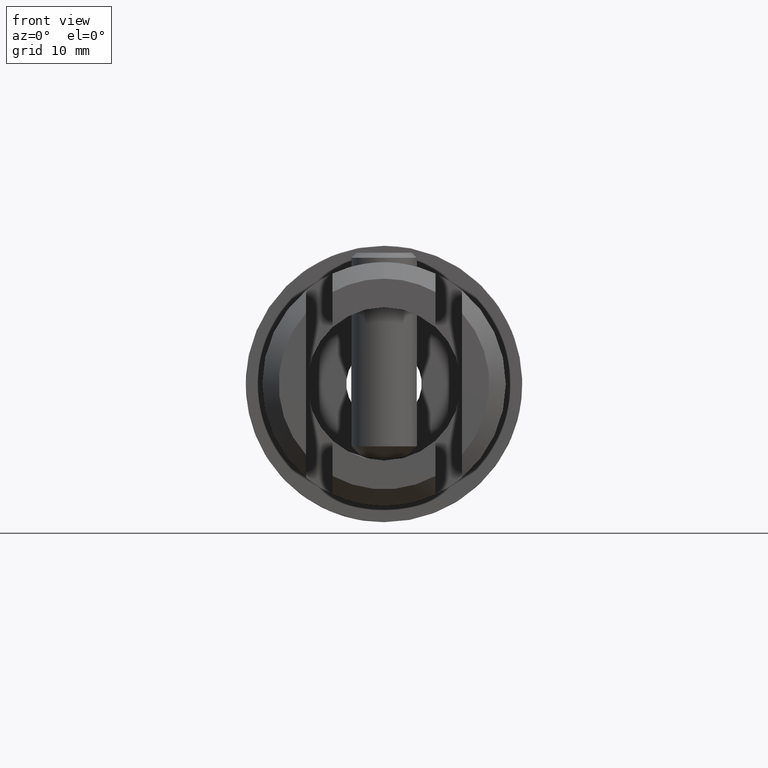
[diagram: clean part render]
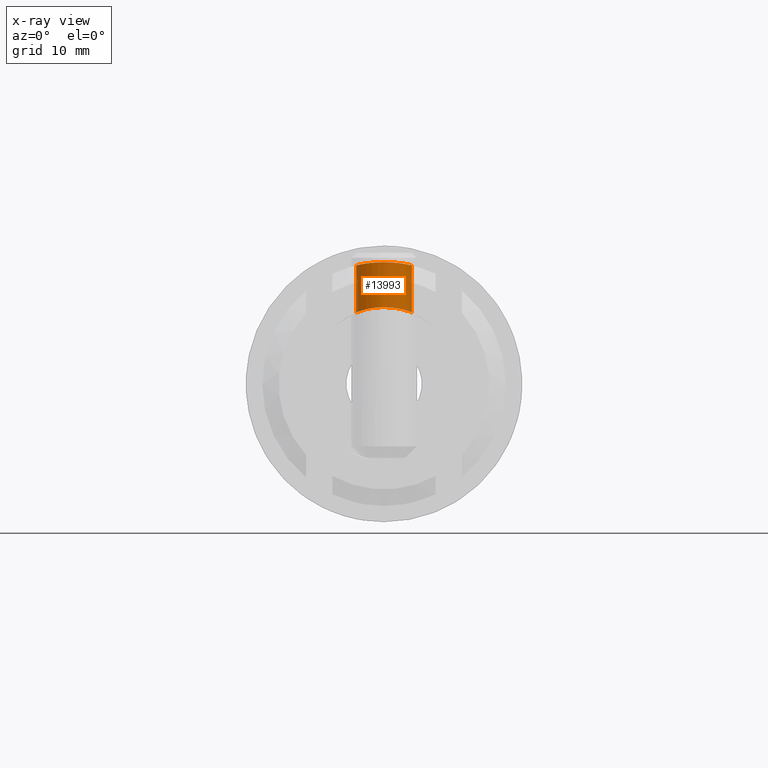
[diagram: x-ray — body ghosted, one internal face saturated and labeled with its STEP entity id]
A machine part, front view, then the same camera in x-ray: the body is ghosted and one INTERNAL B-rep face — a face not visible from any outside direction — is saturated and labeled: STEP entity #13993.
In plain terms, the highlighted cylindrical surface (edge-blend (fillet) strip) has radius 3.4 mm, axis along (0, 0, 1).
Its self-contained STEP definition (entity closure, byte-faithful):
#370 = CARTESIAN_POINT ( 'NONE',  ( 2.560851256221121200, -27.24736343419464600, 8.993917099799180200 ) ) ;
#379 = B_SPLINE_CURVE_WITH_KNOTS ( 'NONE', 3,
 ( #3356, #3595, #5797, #9152, #12460, #6881, #11019, #6926, #1116, #8041, #13477, #4448, #11262, #9882, #1475, #5513, #9104, #12116 ),
 .UNSPECIFIED., .F., .F.,
 ( 4, 2, 2, 2, 2, 2, 2, 2, 4 ),
 ( 0.005334033637394316300, 0.006000448758761986600, 0.006666863880129657000, 0.007333279001497327300, 0.007999694122864997600, 0.008666109244232667000, 0.009332524365600338200, 0.009998939486968009400, 0.01066535460833567900 ),
 .UNSPECIFIED. ) ;
#380 = CARTESIAN_POINT ( 'NONE',  ( -3.224151353612382500, -26.10193309631451800, 8.776991406153662500 ) ) ;
#396 = EDGE_CURVE ( 'NONE', #653, #8268, #6133, .T. ) ;
#420 = CARTESIAN_POINT ( 'NONE',  ( 1.103312287225252300, -28.22365372106664000, 9.286979688644496600 ) ) ;
#436 = CARTESIAN_POINT ( 'NONE',  ( 3.377787303667212800, -25.44709929571871500, 14.46081050665008900 ) ) ;
#523 = EDGE_CURVE ( 'NONE', #1559, #8268, #379, .T. ) ;
#653 = VERTEX_POINT ( 'NONE', #5624 ) ;
#680 = ORIENTED_EDGE ( 'NONE', *, *, #523, .F. ) ;
#1116 = CARTESIAN_POINT ( 'NONE',  ( -2.247549731191403700, -27.56090788823117400, 14.67980017481063500 ) ) ;
#1134 = VERTEX_POINT ( 'NONE', #3656 ) ;
#1475 = CARTESIAN_POINT ( 'NONE',  ( -3.290277657460371600, -25.88533154860865100, 14.48097326061422600 ) ) ;
#1498 = CARTESIAN_POINT ( 'NONE',  ( 3.052868532618288700, -26.51321210470752000, 8.838031023548856200 ) ) ;
#1505 = CARTESIAN_POINT ( 'NONE',  ( -2.946555545965394700, -26.71067771688259600, 8.874508670934762500 ) ) ;
#1516 = CARTESIAN_POINT ( 'NONE',  ( 2.559515426306169200, -27.24894185175930500, 14.62861880728352100 ) ) ;
#1558 = CARTESIAN_POINT ( 'NONE',  ( -0.4514445684383656100, -28.37726596830162900, 9.341666914394469500 ) ) ;
#1559 = VERTEX_POINT ( 'NONE', #9782 ) ;
#1598 = CARTESIAN_POINT ( 'NONE',  ( 2.249188237355442600, -27.55924868560800100, 9.076874805101768500 ) ) ;
#1614 = CARTESIAN_POINT ( 'NONE',  ( 1.704340255590750100, -27.95045828005106300, 14.75306157905248000 ) ) ;
#1842 = FACE_OUTER_BOUND ( 'NONE', #11709, .T. ) ;
#2481 = CARTESIAN_POINT ( 'NONE',  ( 1.145044758784413600E-015, -28.39999999999999500, 9.349999999999999600 ) ) ;
#2529 = CARTESIAN_POINT ( 'NONE',  ( 2.948410084996952100, -26.70747542741621300, 8.873889530243653600 ) ) ;
#2631 = CARTESIAN_POINT ( 'NONE',  ( -2.561314164265691100, -27.24701168963644100, 8.993809759157898000 ) ) ;
#2916 = DIRECTION ( 'NONE',  ( -0.0000000000000000000, -0.0000000000000000000, 1.000000000000000000 ) ) ;
#3246 = DIRECTION ( 'NONE',  ( 1.000000000000000000, 0.0000000000000000000, 0.0000000000000000000 ) ) ;
#3356 = CARTESIAN_POINT ( 'NONE',  ( 1.085788149946200600E-023, -28.39999999999999500, 14.85000000000000100 ) ) ;
#3393 = EDGE_CURVE ( 'NONE', #6519, #4734, #3582, .T. ) ;
#3582 = LINE ( 'NONE', #8370, #10432 ) ;
#3595 = CARTESIAN_POINT ( 'NONE',  ( -0.2225498109783815800, -28.39999999999999100, 14.85000000000000000 ) ) ;
#3656 = CARTESIAN_POINT ( 'NONE',  ( 1.145044758784413600E-015, -28.39999999999999500, 9.349999999999999600 ) ) ;
#3680 = CARTESIAN_POINT ( 'NONE',  ( -3.289310863982525500, -25.88935702014494900, 8.752438218607583300 ) ) ;
#3713 = EDGE_CURVE ( 'NONE', #1134, #6519, #13422, .T. ) ;
#3761 = CARTESIAN_POINT ( 'NONE',  ( 2.079384559158379300, -27.69916348404223800, 9.117791299075165100 ) ) ;
#3818 = CARTESIAN_POINT ( 'NONE',  ( -3.053240066106528400, -26.51232721276701900, 8.837898799681829200 ) ) ;
#3826 = CARTESIAN_POINT ( 'NONE',  ( 3.225117449314261400, -26.09920761805829400, 14.49581911947892400 ) ) ;
#4448 = CARTESIAN_POINT ( 'NONE',  ( -2.948766519194992800, -26.70694996413898900, 14.55482624653220500 ) ) ;
#4734 = VERTEX_POINT ( 'NONE', #9894 ) ;
#4814 = CARTESIAN_POINT ( 'NONE',  ( 3.399999999999995900, -25.22676761621594100, 8.709908151065661700 ) ) ;
#4824 = CARTESIAN_POINT ( 'NONE',  ( -2.076189107448144000, -27.70145820636367500, 9.118485847544988600 ) ) ;
#4930 = CARTESIAN_POINT ( 'NONE',  ( 2.246786132947030400, -27.56140796104226700, 14.67990325237552400 ) ) ;
#5513 = CARTESIAN_POINT ( 'NONE',  ( -3.377733679735773100, -25.44794441945776200, 14.46082393318533100 ) ) ;
#5533 = DIRECTION ( 'NONE',  ( -0.0000000000000000000, -0.0000000000000000000, 1.000000000000000000 ) ) ;
#5624 = CARTESIAN_POINT ( 'NONE',  ( -3.399999999999989300, -25.00000000000000000, 8.709908151065661700 ) ) ;
#5797 = CARTESIAN_POINT ( 'NONE',  ( -0.4486579841717742700, -28.37761016181635700, 14.84482874324919500 ) ) ;
#5823 = CARTESIAN_POINT ( 'NONE',  ( 3.290260810460306800, -25.88522021327725400, 8.752077733008924600 ) ) ;
#5867 = B_SPLINE_CURVE_WITH_KNOTS ( 'NONE', 3,
 ( #9240, #6920, #436, #12500, #3826, #5937, #5892, #7021, #1516, #4930, #9146, #1614, #11298, #7112, #8134, #10298, #7070, #9192 ),
 .UNSPECIFIED., .F., .F.,
 ( 4, 2, 2, 2, 2, 2, 2, 2, 4 ),
 ( 0.0000000000000000000, 0.0006667542046742895400, 0.001333508409348579100, 0.002000262614022868600, 0.002667016818697158200, 0.003333771023371447700, 0.004000525228045737200, 0.004667279432720026300, 0.005334033637394316300 ),
 .UNSPECIFIED. ) ;
#5892 = CARTESIAN_POINT ( 'NONE',  ( 2.949548019838551300, -26.70571422566941800, 14.55467194933941100 ) ) ;
#5930 = CARTESIAN_POINT ( 'NONE',  ( -1.513240635546914300, -28.05285966176996500, 9.229080728939726100 ) ) ;
#5937 = CARTESIAN_POINT ( 'NONE',  ( 3.054092793167229500, -26.51068102529710300, 14.53281362012347000 ) ) ;
#6133 = LINE ( 'NONE', #11496, #8706 ) ;
#6519 = VERTEX_POINT ( 'NONE', #13087 ) ;
#6563 = AXIS2_PLACEMENT_3D ( 'NONE', #10985, #5533, #3246 ) ;
#6881 = CARTESIAN_POINT ( 'NONE',  ( -1.509918585234548200, -28.05450684938512400, 14.77448851922769000 ) ) ;
#6908 = CARTESIAN_POINT ( 'NONE',  ( -3.399999999999989300, -25.00000000000000000, 8.709908151065661700 ) ) ;
#6920 = CARTESIAN_POINT ( 'NONE',  ( 3.399999999999995000, -25.22551213648098000, 14.45553527199875000 ) ) ;
#6926 = CARTESIAN_POINT ( 'NONE',  ( -2.075050197271203000, -27.70241002672442200, 14.70547375258931100 ) ) ;
#7021 = CARTESIAN_POINT ( 'NONE',  ( 2.702675587609325400, -27.07481064416132800, 14.60252901871322000 ) ) ;
#7061 = CARTESIAN_POINT ( 'NONE',  ( -1.101019764495341900, -28.22453172006778000, 9.287280753834659600 ) ) ;
#7070 = CARTESIAN_POINT ( 'NONE',  ( 0.2226630480934693200, -28.40000000000000600, 14.85000000000000100 ) ) ;
#7112 = CARTESIAN_POINT ( 'NONE',  ( 1.098496443602998000, -28.22526509374033000, 14.81073794189646800 ) ) ;
#7637 = ORIENTED_EDGE ( 'NONE', *, *, #13753, .F. ) ;
#8018 = CARTESIAN_POINT ( 'NONE',  ( 0.4464298635878606900, -28.37805978766327500, 9.341953220452188200 ) ) ;
#8026 = CARTESIAN_POINT ( 'NONE',  ( -3.399999999999989700, -25.22318110410719400, 8.709908151065661700 ) ) ;
#8041 = CARTESIAN_POINT ( 'NONE',  ( -2.562787419532462700, -27.24540634373143200, 14.62805980329705100 ) ) ;
#8118 = CARTESIAN_POINT ( 'NONE',  ( 3.224490295060941300, -26.10112646337379900, 8.776870797027877200 ) ) ;
#8127 = CARTESIAN_POINT ( 'NONE',  ( -0.8886913880105157300, -28.28937003632864500, 9.310250831999139700 ) ) ;
#8134 = CARTESIAN_POINT ( 'NONE',  ( 0.8832713860209808800, -28.29089864388988900, 14.82533976088502200 ) ) ;
#8165 = CARTESIAN_POINT ( 'NONE',  ( 0.2241013579882652200, -28.39999999999998800, 9.349999999999999600 ) ) ;
#8168 = CARTESIAN_POINT ( 'NONE',  ( -0.2239951746924466500, -28.39999999999999500, 9.349999999999999600 ) ) ;
#8268 = VERTEX_POINT ( 'NONE', #11543 ) ;
#8370 = CARTESIAN_POINT ( 'NONE',  ( 3.399999999999995500, -25.00000000000000000, 14.85000000000000100 ) ) ;
#8706 = VECTOR ( 'NONE', #9212, 1000.000000000000000 ) ;
#8811 = EDGE_CURVE ( 'NONE', #4734, #1559, #5867, .T. ) ;
#9104 = CARTESIAN_POINT ( 'NONE',  ( -3.399999999999990600, -25.22226603729071200, 14.45553527199875500 ) ) ;
#9146 = CARTESIAN_POINT ( 'NONE',  ( 2.076001232804444400, -27.70188797890353200, 14.70536706592310900 ) ) ;
#9152 = CARTESIAN_POINT ( 'NONE',  ( -0.8851811817118184800, -28.29028853864056400, 14.82520450714598900 ) ) ;
#9179 = CARTESIAN_POINT ( 'NONE',  ( -2.700952100010638000, -27.07688843945605900, 8.952315426156737000 ) ) ;
#9192 = CARTESIAN_POINT ( 'NONE',  ( 1.085788149946200600E-023, -28.39999999999999500, 14.85000000000000100 ) ) ;
#9212 = DIRECTION ( 'NONE',  ( -0.0000000000000000000, -0.0000000000000000000, 1.000000000000000000 ) ) ;
#9240 = CARTESIAN_POINT ( 'NONE',  ( 3.399999999999995500, -25.00000000000000000, 14.45553527199875400 ) ) ;
#9270 = CARTESIAN_POINT ( 'NONE',  ( 3.399999999999995500, -25.00000000000000000, 8.709908151065658200 ) ) ;
#9603 = ORIENTED_EDGE ( 'NONE', *, *, #396, .T. ) ;
#9782 = CARTESIAN_POINT ( 'NONE',  ( 1.085788149946200600E-023, -28.39999999999999500, 14.85000000000000100 ) ) ;
#9882 = CARTESIAN_POINT ( 'NONE',  ( -3.225742366108233000, -26.09725920970343100, 14.49567779195888100 ) ) ;
#9894 = CARTESIAN_POINT ( 'NONE',  ( 3.399999999999995500, -25.00000000000000000, 14.45553527199875400 ) ) ;
#9990 = ORIENTED_EDGE ( 'NONE', *, *, #3713, .F. ) ;
#10186 = CARTESIAN_POINT ( 'NONE',  ( 1.710592877409539800, -27.94672626251728400, 9.194119333906474600 ) ) ;
#10290 = CARTESIAN_POINT ( 'NONE',  ( -2.247015897359596600, -27.56131047287206900, 9.077437071608109400 ) ) ;
#10298 = CARTESIAN_POINT ( 'NONE',  ( 0.4438590895149199800, -28.37833854644182800, 14.84499432386879800 ) ) ;
#10376 = CARTESIAN_POINT ( 'NONE',  ( -3.377762122821028200, -25.44860328892034200, 8.718684750126694600 ) ) ;
#10432 = VECTOR ( 'NONE', #2916, 1000.000000000000000 ) ;
#10985 = CARTESIAN_POINT ( 'NONE',  ( 3.061616997868383000E-015, -25.00000000000000000, 14.85000000000000100 ) ) ;
#11019 = CARTESIAN_POINT ( 'NONE',  ( -1.707706590340646500, -27.94832011068050900, 14.75264484120036100 ) ) ;
#11262 = CARTESIAN_POINT ( 'NONE',  ( -3.055459666145263300, -26.50783215721910200, 14.53252403023490800 ) ) ;
#11298 = CARTESIAN_POINT ( 'NONE',  ( 1.507535690497503700, -28.05554667831870600, 14.77470774540113200 ) ) ;
#11380 = CARTESIAN_POINT ( 'NONE',  ( 2.703241791442653900, -27.07390409169272900, 8.951621151572357600 ) ) ;
#11496 = CARTESIAN_POINT ( 'NONE',  ( -3.399999999999989300, -25.00000000000000000, 14.85000000000000100 ) ) ;
#11543 = CARTESIAN_POINT ( 'NONE',  ( -3.399999999999989300, -25.00000000000000000, 14.45553527199875500 ) ) ;
#11545 = B_SPLINE_CURVE_WITH_KNOTS ( 'NONE', 3,
 ( #6908, #8026, #10376, #3680, #380, #3818, #1505, #9179, #2631, #10290, #4824, #12493, #5930, #7061, #8127, #1558, #8168, #12776 ),
 .UNSPECIFIED., .F., .F.,
 ( 4, 2, 2, 2, 2, 2, 2, 2, 4 ),
 ( 0.01072230930273612400, 0.01139213773334922900, 0.01206196616396233400, 0.01273179459457543900, 0.01340162302518854400, 0.01407145145580164900, 0.01474127988641475400, 0.01541110831702785900, 0.01608093674764096400 ),
 .UNSPECIFIED. ) ;
#11679 = ORIENTED_EDGE ( 'NONE', *, *, #8811, .F. ) ;
#11709 = EDGE_LOOP ( 'NONE', ( #7637, #9603, #680, #11679, #13761, #9990 ) ) ;
#12116 = CARTESIAN_POINT ( 'NONE',  ( -3.399999999999989300, -25.00000000000000000, 14.45553527199875500 ) ) ;
#12460 = CARTESIAN_POINT ( 'NONE',  ( -1.097439374244392600, -28.22575464764997800, 14.81084035288631500 ) ) ;
#12493 = CARTESIAN_POINT ( 'NONE',  ( -1.710585686032701800, -27.94658009586638800, 9.194087337659160800 ) ) ;
#12500 = CARTESIAN_POINT ( 'NONE',  ( 3.290899503153177400, -25.88279403554495400, 14.48083105481875100 ) ) ;
#12620 = CYLINDRICAL_SURFACE ( 'NONE', #6563, 3.399999999999992400 ) ;
#12776 = CARTESIAN_POINT ( 'NONE',  ( 1.145044758784413600E-015, -28.39999999999999500, 9.349999999999999600 ) ) ;
#13087 = CARTESIAN_POINT ( 'NONE',  ( 3.399999999999995500, -25.00000000000000000, 8.709908151065658200 ) ) ;
#13422 = B_SPLINE_CURVE_WITH_KNOTS ( 'NONE', 3,
 ( #2481, #8165, #8018, #13550, #420, #13652, #10186, #3761, #1598, #370, #11380, #2529, #1498, #8118, #5823, #13605, #4814, #9270 ),
 .UNSPECIFIED., .F., .F.,
 ( 4, 2, 2, 2, 2, 2, 2, 2, 4 ),
 ( 0.01608093674764096400, 0.01675108270558692300, 0.01742122866353287800, 0.01809137462147883700, 0.01876152057942479700, 0.01943166653737075200, 0.02010181249531671100, 0.02077195845326267100, 0.02144210441120862600 ),
 .UNSPECIFIED. ) ;
#13477 = CARTESIAN_POINT ( 'NONE',  ( -2.702816279438163600, -27.07453279665651300, 14.60249893720497000 ) ) ;
#13550 = CARTESIAN_POINT ( 'NONE',  ( 0.8875231276198835000, -28.28981614228981200, 9.310407740489131000 ) ) ;
#13605 = CARTESIAN_POINT ( 'NONE',  ( 3.377520755583971900, -25.44920437714364400, 8.718774821675408400 ) ) ;
#13652 = CARTESIAN_POINT ( 'NONE',  ( 1.512956865443201500, -28.05290072550637600, 9.229098074229460400 ) ) ;
#13753 = EDGE_CURVE ( 'NONE', #653, #1134, #11545, .T. ) ;
#13761 = ORIENTED_EDGE ( 'NONE', *, *, #3393, .F. ) ;
#13993 = ADVANCED_FACE ( 'NONE', ( #1842 ), #12620, .F. ) ;